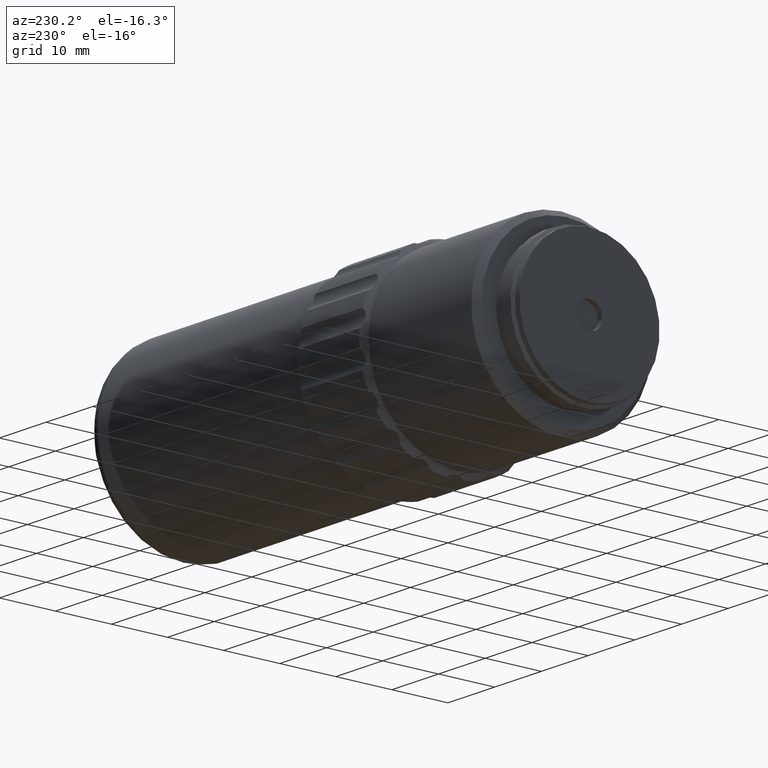
[diagram: clean part render]
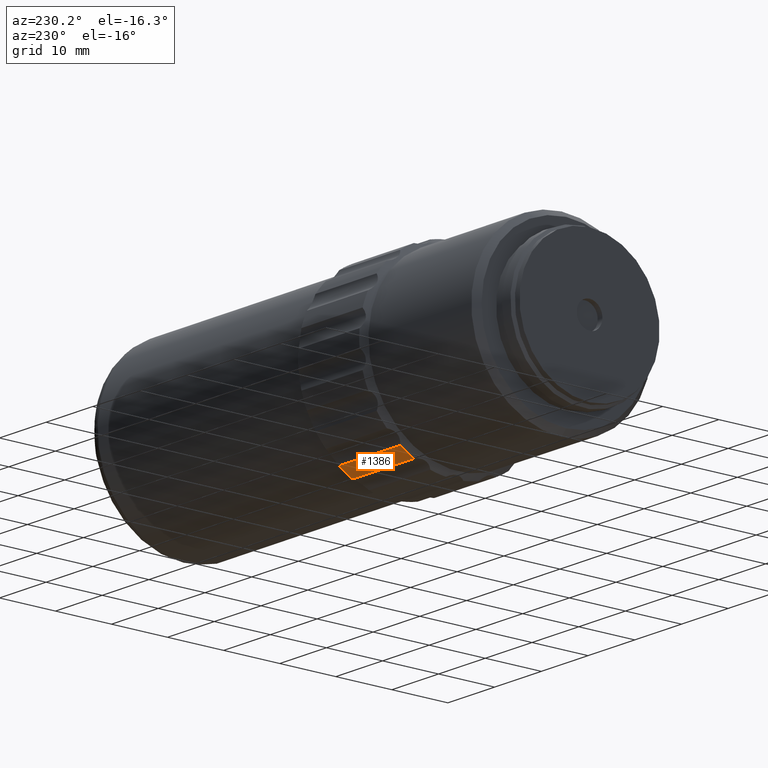
[diagram: same view with one face highlighted and labeled with its STEP entity id]
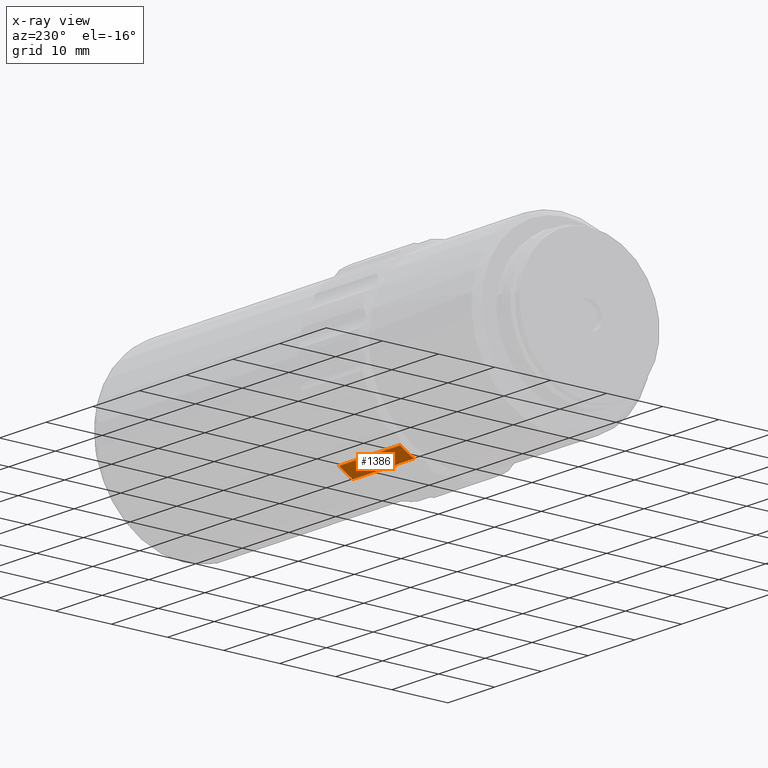
[diagram: x-ray of the same camera — body ghosted, the highlighted face saturated]
A machine part, auxiliary view. The second image highlights one B-rep face of the part: STEP entity #1386.
The next image is the same camera in x-ray: the body ghosted, the highlighted face saturated — about 0% of this face is hidden behind the body in this view.
In plain terms, the highlighted cylindrical surface (partial cylindrical patch) has radius 17 mm, axis along (-1, 0, 0).
Its self-contained STEP definition (entity closure, byte-faithful):
#33 = DIRECTION ( 'NONE',  ( 0.000000000000000000, 9.796085511398439970E-15, 1.000000000000000000 ) ) ;
#226 = ORIENTED_EDGE ( 'NONE', *, *, #1572, .T. ) ;
#251 = CARTESIAN_POINT ( 'NONE',  ( 25.94685803487879738, 46.02096199999999726, 0.000000000000000000 ) ) ;
#262 = EDGE_CURVE ( 'NONE', #1878, #577, #581, .T. ) ;
#306 = CARTESIAN_POINT ( 'NONE',  ( 53.58686043487880823, 55.71814035268526766, -13.96297718956139100 ) ) ;
#444 = DIRECTION ( 'NONE',  ( -1.000000000000000000, 0.000000000000000000, 0.000000000000000000 ) ) ;
#459 = LINE ( 'NONE', #306, #1203 ) ;
#484 = ORIENTED_EDGE ( 'NONE', *, *, #1863, .T. ) ;
#526 = VERTEX_POINT ( 'NONE', #1627 ) ;
#577 = VERTEX_POINT ( 'NONE', #656 ) ;
#581 = CIRCLE ( 'NONE', #1776, 17.00000000000000000 ) ;
#656 = CARTESIAN_POINT ( 'NONE',  ( 19.34685803487878886, 55.71814035268526766, -13.96297718956139278 ) ) ;
#776 = DIRECTION ( 'NONE',  ( 0.000000000000000000, 1.000000000000000000, 1.065814103640150437E-14 ) ) ;
#827 = EDGE_CURVE ( 'NONE', #526, #1635, #1127, .T. ) ;
#895 = AXIS2_PLACEMENT_3D ( 'NONE', #251, #1577, #2031 ) ;
#1127 = CIRCLE ( 'NONE', #1851, 17.00000000000000000 ) ;
#1167 = CARTESIAN_POINT ( 'NONE',  ( 19.34685803487879596, 46.02096199999999726, 0.000000000000000000 ) ) ;
#1170 = VECTOR ( 'NONE', #444, 1000.000000000000000 ) ;
#1203 = VECTOR ( 'NONE', #1436, 1000.000000000000000 ) ;
#1241 = CARTESIAN_POINT ( 'NONE',  ( 25.94685803487879738, 53.26466578228018989, -15.37949139323468195 ) ) ;
#1309 = EDGE_LOOP ( 'NONE', ( #484, #1412, #226, #1919 ) ) ;
#1371 = CARTESIAN_POINT ( 'NONE',  ( 32.44685803487879383, 55.71814035268526766, -13.96297718956138922 ) ) ;
#1386 = ADVANCED_FACE ( 'NONE', ( #1815 ), #1542, .T. ) ;
#1412 = ORIENTED_EDGE ( 'NONE', *, *, #262, .T. ) ;
#1436 = DIRECTION ( 'NONE',  ( 1.000000000000000000, -0.000000000000000000, -0.000000000000000000 ) ) ;
#1542 = CYLINDRICAL_SURFACE ( 'NONE', #895, 17.00000000000000000 ) ;
#1572 = EDGE_CURVE ( 'NONE', #577, #1635, #459, .T. ) ;
#1577 = DIRECTION ( 'NONE',  ( -1.000000000000000000, 0.000000000000000000, 0.000000000000000000 ) ) ;
#1627 = CARTESIAN_POINT ( 'NONE',  ( 32.44685803487878673, 53.26466578228019699, -15.37949139323468017 ) ) ;
#1635 = VERTEX_POINT ( 'NONE', #1371 ) ;
#1644 = CARTESIAN_POINT ( 'NONE',  ( 19.34685803487879596, 53.26466578228018989, -15.37949139323468017 ) ) ;
#1658 = DIRECTION ( 'NONE',  ( 1.000000000000000000, -0.000000000000000000, -0.000000000000000000 ) ) ;
#1730 = DIRECTION ( 'NONE',  ( 1.000000000000000000, -0.000000000000000000, -0.000000000000000000 ) ) ;
#1776 = AXIS2_PLACEMENT_3D ( 'NONE', #1167, #1658, #33 ) ;
#1815 = FACE_OUTER_BOUND ( 'NONE', #1309, .T. ) ;
#1851 = AXIS2_PLACEMENT_3D ( 'NONE', #2078, #1730, #776 ) ;
#1863 = EDGE_CURVE ( 'NONE', #526, #1878, #2056, .T. ) ;
#1878 = VERTEX_POINT ( 'NONE', #1644 ) ;
#1919 = ORIENTED_EDGE ( 'NONE', *, *, #827, .F. ) ;
#2031 = DIRECTION ( 'NONE',  ( 0.000000000000000000, 0.000000000000000000, 1.000000000000000000 ) ) ;
#2056 = LINE ( 'NONE', #1241, #1170 ) ;
#2078 = CARTESIAN_POINT ( 'NONE',  ( 32.44685803487878673, 46.02096199999999726, 0.000000000000000000 ) ) ;